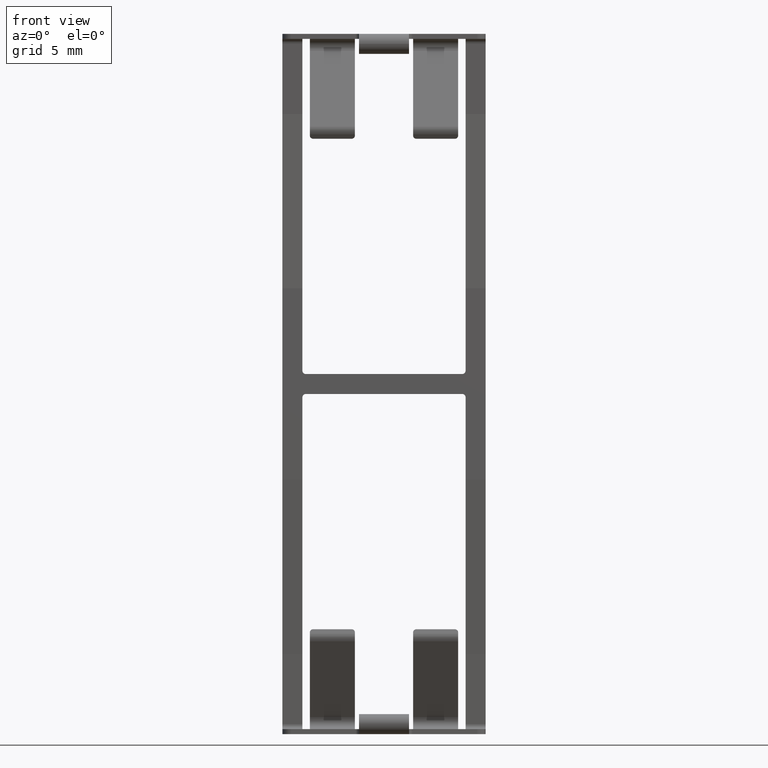
[diagram: clean part render]
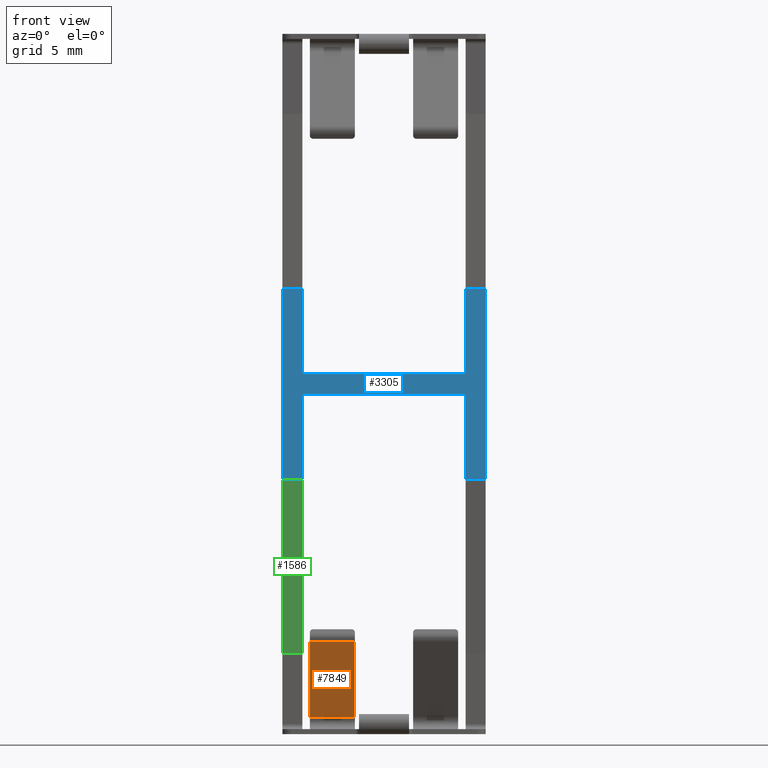
[diagram: same view with three faces highlighted in distinct colors, each labeled with its STEP entity id]
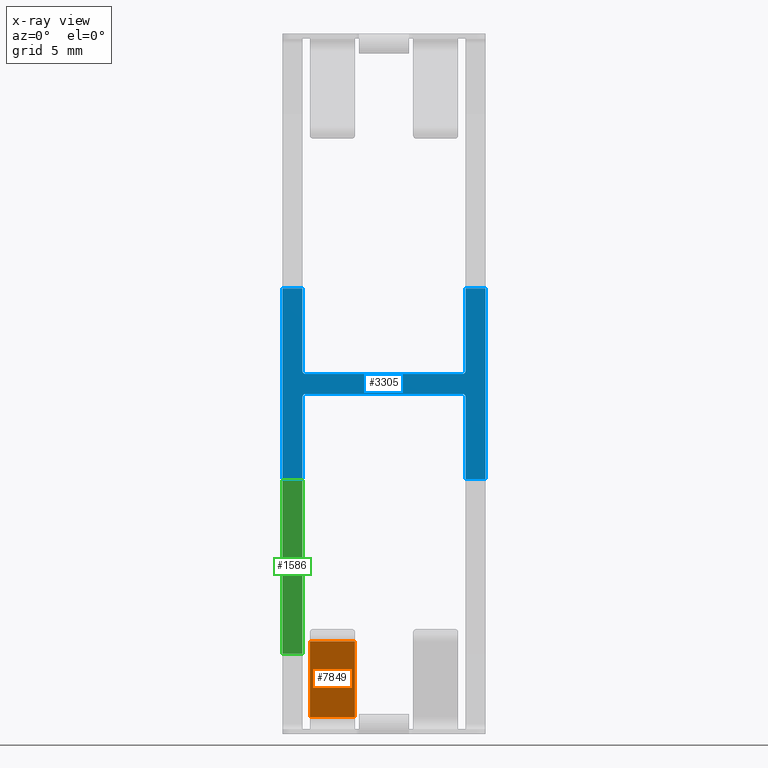
[diagram: x-ray of the same camera — body ghosted, the three highlighted faces saturated]
A machine part, front view with three faces highlighted in distinct colors.
The next image is the same camera in x-ray (body ghosted, the three faces saturated) — at least one of them is partly hidden behind the body in this view.
Their STEP definitions:

[orange] entity #7849 — the highlighted planar face has unit normal (0, -0.885, -0.4655).
#5 = CARTESIAN_POINT ( 'NONE',  ( -4.450000000000001066, 2.792520677337574586, -41.01724379679871646 ) ) ;
#33 = EDGE_CURVE ( 'NONE', #4945, #9798, #7511, .T. ) ;
#107 = VECTOR ( 'NONE', #1181, 999.9999999999998863 ) ;
#167 = ORIENTED_EDGE ( 'NONE', *, *, #11297, .F. ) ;
#281 = ORIENTED_EDGE ( 'NONE', *, *, #2717, .F. ) ;
#659 = DIRECTION ( 'NONE',  ( 1.000000000000000000, 1.015655456140227682E-17, -1.803643067149463097E-17 ) ) ;
#1181 = DIRECTION ( 'NONE',  ( -2.069098918964203170E-17, 0.4655124064025548680, -0.8850413546751940697 ) ) ;
#1259 = ORIENTED_EDGE ( 'NONE', *, *, #5879, .T. ) ;
#1943 = CARTESIAN_POINT ( 'NONE',  ( -4.450000000000001066, 2.792520677337574586, -41.01724379679871646 ) ) ;
#2630 = CARTESIAN_POINT ( 'NONE',  ( -4.450000000000001066, 2.792520677337574586, -41.01724379679871646 ) ) ;
#2687 = DIRECTION ( 'NONE',  ( 5.927885630556773337E-19, -0.8850413546751940697, -0.4655124064025547570 ) ) ;
#2717 = EDGE_CURVE ( 'NONE', #8808, #8483, #5981, .T. ) ;
#2782 = CARTESIAN_POINT ( 'NONE',  ( -1.750000000000000444, 2.792520677337574586, -41.01724379679871646 ) ) ;
#2831 = DIRECTION ( 'NONE',  ( 1.000000000000000000, 1.015655456140227682E-17, -1.803643067149463097E-17 ) ) ;
#3239 = AXIS2_PLACEMENT_3D ( 'NONE', #5, #2687, #10676 ) ;
#4339 = VECTOR ( 'NONE', #5459, 999.9999999999998863 ) ;
#4686 = VECTOR ( 'NONE', #2831, 1000.000000000000000 ) ;
#4945 = VERTEX_POINT ( 'NONE', #10872 ) ;
#5060 = CARTESIAN_POINT ( 'NONE',  ( -4.450000000000001066, 0.4074793226623990572, -36.48275620320126933 ) ) ;
#5209 = EDGE_LOOP ( 'NONE', ( #9705, #1259, #281, #167 ) ) ;
#5459 = DIRECTION ( 'NONE',  ( -2.069098918964203170E-17, 0.4655124064025548680, -0.8850413546751940697 ) ) ;
#5879 = EDGE_CURVE ( 'NONE', #9798, #8483, #7309, .T. ) ;
#5981 = LINE ( 'NONE', #2782, #4339 ) ;
#6799 = LINE ( 'NONE', #5060, #11247 ) ;
#7309 = LINE ( 'NONE', #8951, #4686 ) ;
#7511 = LINE ( 'NONE', #1943, #107 ) ;
#7849 = ADVANCED_FACE ( 'NONE', ( #10690 ), #8787, .T. ) ;
#8086 = CARTESIAN_POINT ( 'NONE',  ( -1.750000000000000444, 2.792520677337574586, -41.01724379679871646 ) ) ;
#8483 = VERTEX_POINT ( 'NONE', #8086 ) ;
#8787 = PLANE ( 'NONE',  #3239 ) ;
#8808 = VERTEX_POINT ( 'NONE', #9373 ) ;
#8951 = CARTESIAN_POINT ( 'NONE',  ( -4.450000000000001066, 2.792520677337574586, -41.01724379679871646 ) ) ;
#9373 = CARTESIAN_POINT ( 'NONE',  ( -1.750000000000001554, 0.4074793226623898423, -36.48275620320126222 ) ) ;
#9705 = ORIENTED_EDGE ( 'NONE', *, *, #33, .T. ) ;
#9798 = VERTEX_POINT ( 'NONE', #2630 ) ;
#10676 = DIRECTION ( 'NONE',  ( -2.069098918964202245E-17, 0.4655124064025547570, -0.8850413546751940697 ) ) ;
#10690 = FACE_OUTER_BOUND ( 'NONE', #5209, .T. ) ;
#10872 = CARTESIAN_POINT ( 'NONE',  ( -4.450000000000002842, 0.4074793226623896203, -36.48275620320126222 ) ) ;
#11247 = VECTOR ( 'NONE', #659, 1000.000000000000000 ) ;
#11297 = EDGE_CURVE ( 'NONE', #4945, #8808, #6799, .T. ) ;

[blue] entity #3305 — the highlighted planar face has unit normal (0, 1, 0).
#27 = VERTEX_POINT ( 'NONE', #8009 ) ;
#91 = LINE ( 'NONE', #1361, #11406 ) ;
#104 = VERTEX_POINT ( 'NONE', #2925 ) ;
#121 = DIRECTION ( 'NONE',  ( 0.0000000000000000000, -2.168404344971021884E-15, 1.000000000000000000 ) ) ;
#189 = DIRECTION ( 'NONE',  ( 1.000000000000000000, 0.0000000000000000000, 0.0000000000000000000 ) ) ;
#325 = DIRECTION ( 'NONE',  ( 0.0000000000000000000, -2.168404344971021884E-15, 1.000000000000000000 ) ) ;
#476 = DIRECTION ( 'NONE',  ( 0.0000000000000000000, -2.168404344971021884E-15, 1.000000000000000000 ) ) ;
#902 = CIRCLE ( 'NONE', #10022, 0.1999999999999987899 ) ;
#913 = DIRECTION ( 'NONE',  ( 1.000000000000000000, 0.0000000000000000000, 0.0000000000000000000 ) ) ;
#1091 = CARTESIAN_POINT ( 'NONE',  ( -4.899999999999999467, 1.950000000000021938, -21.82499999999999574 ) ) ;
#1219 = CARTESIAN_POINT ( 'NONE',  ( -4.700000000000000178, 1.950000000000023270, -21.62500000000000000 ) ) ;
#1255 = AXIS2_PLACEMENT_3D ( 'NONE', #11054, #2177, #325 ) ;
#1361 = CARTESIAN_POINT ( 'NONE',  ( -4.899999999999999467, 1.950000000000013278, -15.30000000000008953 ) ) ;
#1487 = CARTESIAN_POINT ( 'NONE',  ( -4.899999999999999467, 1.950000000000023270, -21.62500000000000000 ) ) ;
#1571 = VECTOR ( 'NONE', #4754, 1000.000000000000000 ) ;
#1627 = VERTEX_POINT ( 'NONE', #4280 ) ;
#1718 = VERTEX_POINT ( 'NONE', #2472 ) ;
#1824 = VERTEX_POINT ( 'NONE', #2811 ) ;
#1828 = ORIENTED_EDGE ( 'NONE', *, *, #10647, .F. ) ;
#1841 = LINE ( 'NONE', #8434, #8856 ) ;
#1966 = EDGE_CURVE ( 'NONE', #4938, #3746, #10091, .T. ) ;
#1968 = CIRCLE ( 'NONE', #10181, 0.1999999999999987899 ) ;
#1980 = VECTOR ( 'NONE', #5227, 1000.000000000000000 ) ;
#1999 = EDGE_CURVE ( 'NONE', #3967, #4938, #9823, .T. ) ;
#2069 = ORIENTED_EDGE ( 'NONE', *, *, #1999, .F. ) ;
#2141 = ORIENTED_EDGE ( 'NONE', *, *, #8372, .T. ) ;
#2177 = DIRECTION ( 'NONE',  ( 0.0000000000000000000, 1.000000000000000000, 1.637578961322105503E-15 ) ) ;
#2472 = CARTESIAN_POINT ( 'NONE',  ( -4.900000000000001243, 1.950000000000033706, -26.74999999999999645 ) ) ;
#2567 = ORIENTED_EDGE ( 'NONE', *, *, #7269, .F. ) ;
#2691 = CARTESIAN_POINT ( 'NONE',  ( -4.700000000000000178, 1.950000000000020828, -20.22500000000000142 ) ) ;
#2811 = CARTESIAN_POINT ( 'NONE',  ( -4.700000000000000178, 1.950000000000022382, -20.42499999999999716 ) ) ;
#2905 = VERTEX_POINT ( 'NONE', #10926 ) ;
#2925 = CARTESIAN_POINT ( 'NONE',  ( -4.900000000000001243, 1.950000000000014166, -15.30000000000009130 ) ) ;
#3094 = CARTESIAN_POINT ( 'NONE',  ( 4.700000000000001066, 1.950000000000023714, -21.82499999999999574 ) ) ;
#3160 = DIRECTION ( 'NONE',  ( 0.0000000000000000000, 1.887379141862765724E-15, -1.000000000000000000 ) ) ;
#3183 = ORIENTED_EDGE ( 'NONE', *, *, #1966, .F. ) ;
#3254 = LINE ( 'NONE', #8830, #3791 ) ;
#3293 = EDGE_CURVE ( 'NONE', #104, #10777, #7768, .T. ) ;
#3305 = ADVANCED_FACE ( 'NONE', ( #5670 ), #10341, .F. ) ;
#3500 = CARTESIAN_POINT ( 'NONE',  ( 6.100000000000001421, 1.950000000000014166, -15.30000000000009130 ) ) ;
#3648 = EDGE_CURVE ( 'NONE', #3967, #3934, #4713, .T. ) ;
#3746 = VERTEX_POINT ( 'NONE', #5493 ) ;
#3791 = VECTOR ( 'NONE', #913, 1000.000000000000000 ) ;
#3856 = EDGE_CURVE ( 'NONE', #27, #4762, #902, .T. ) ;
#3934 = VERTEX_POINT ( 'NONE', #11239 ) ;
#3967 = VERTEX_POINT ( 'NONE', #3500 ) ;
#3968 = DIRECTION ( 'NONE',  ( 0.0000000000000000000, 1.000000000000000000, 1.637578961322105503E-15 ) ) ;
#4137 = EDGE_LOOP ( 'NONE', ( #5241, #8725, #4939, #10332, #2141, #3183, #2069, #10552, #10266, #4508, #2567, #7430, #1828, #9657, #7304, #9302 ) ) ;
#4246 = CARTESIAN_POINT ( 'NONE',  ( 4.700000000000001066, 1.950000000000020828, -20.22500000000000142 ) ) ;
#4280 = CARTESIAN_POINT ( 'NONE',  ( -4.899999999999999467, 1.950000000000022382, -20.22500000000000142 ) ) ;
#4353 = LINE ( 'NONE', #1487, #4737 ) ;
#4406 = VERTEX_POINT ( 'NONE', #1219 ) ;
#4505 = CARTESIAN_POINT ( 'NONE',  ( -6.099999999999999645, 1.950000000000031930, -26.74999999999999645 ) ) ;
#4508 = ORIENTED_EDGE ( 'NONE', *, *, #8360, .T. ) ;
#4692 = DIRECTION ( 'NONE',  ( -1.000000000000000000, -0.0000000000000000000, 0.0000000000000000000 ) ) ;
#4713 = LINE ( 'NONE', #6987, #5543 ) ;
#4737 = VECTOR ( 'NONE', #8391, 1000.000000000000000 ) ;
#4754 = DIRECTION ( 'NONE',  ( 0.0000000000000000000, 1.637578961322105503E-15, -1.000000000000000000 ) ) ;
#4762 = VERTEX_POINT ( 'NONE', #9722 ) ;
#4906 = DIRECTION ( 'NONE',  ( 0.0000000000000000000, 1.000000000000000000, 1.637578961322105503E-15 ) ) ;
#4938 = VERTEX_POINT ( 'NONE', #8348 ) ;
#4939 = ORIENTED_EDGE ( 'NONE', *, *, #9028, .T. ) ;
#5073 = CARTESIAN_POINT ( 'NONE',  ( -6.099999999999999645, 1.950000000000012834, -15.30000000000008953 ) ) ;
#5094 = DIRECTION ( 'NONE',  ( 0.0000000000000000000, -2.168404344971021884E-15, 1.000000000000000000 ) ) ;
#5130 = CARTESIAN_POINT ( 'NONE',  ( 4.899999999999999467, 1.950000000000023270, -21.62500000000000000 ) ) ;
#5227 = DIRECTION ( 'NONE',  ( 0.0000000000000000000, 1.637578961322105503E-15, -1.000000000000000000 ) ) ;
#5241 = ORIENTED_EDGE ( 'NONE', *, *, #6928, .F. ) ;
#5403 = LINE ( 'NONE', #4505, #1980 ) ;
#5493 = CARTESIAN_POINT ( 'NONE',  ( 4.899999999999999467, 1.950000000000031486, -26.74999999999999645 ) ) ;
#5543 = VECTOR ( 'NONE', #11438, 1000.000000000000000 ) ;
#5664 = VECTOR ( 'NONE', #6591, 1000.000000000000000 ) ;
#5670 = FACE_OUTER_BOUND ( 'NONE', #4137, .T. ) ;
#5793 = VECTOR ( 'NONE', #11038, 1000.000000000000000 ) ;
#5924 = VERTEX_POINT ( 'NONE', #7555 ) ;
#5948 = EDGE_CURVE ( 'NONE', #1718, #2905, #7619, .T. ) ;
#6213 = DIRECTION ( 'NONE',  ( 0.0000000000000000000, 1.000000000000000000, 1.637578961322105503E-15 ) ) ;
#6236 = VECTOR ( 'NONE', #9630, 1000.000000000000000 ) ;
#6591 = DIRECTION ( 'NONE',  ( -1.000000000000000000, -0.0000000000000000000, 0.0000000000000000000 ) ) ;
#6752 = EDGE_CURVE ( 'NONE', #1824, #1627, #9493, .T. ) ;
#6928 = EDGE_CURVE ( 'NONE', #11053, #1718, #4353, .T. ) ;
#6987 = CARTESIAN_POINT ( 'NONE',  ( 6.099999999999999645, 1.950000000000013278, -15.30000000000008953 ) ) ;
#7193 = VECTOR ( 'NONE', #4692, 1000.000000000000000 ) ;
#7269 = EDGE_CURVE ( 'NONE', #1824, #8371, #3254, .T. ) ;
#7304 = ORIENTED_EDGE ( 'NONE', *, *, #7879, .T. ) ;
#7376 = CARTESIAN_POINT ( 'NONE',  ( 6.099999999999999645, 1.950000000000031930, -26.74999999999999645 ) ) ;
#7430 = ORIENTED_EDGE ( 'NONE', *, *, #6752, .T. ) ;
#7474 = DIRECTION ( 'NONE',  ( 0.0000000000000000000, -1.637578961322105503E-15, 1.000000000000000000 ) ) ;
#7480 = DIRECTION ( 'NONE',  ( 0.0000000000000000000, 1.887379141862765724E-15, -1.000000000000000000 ) ) ;
#7555 = CARTESIAN_POINT ( 'NONE',  ( 4.899999999999999467, 1.950000000000022382, -20.22500000000000142 ) ) ;
#7619 = LINE ( 'NONE', #9253, #5664 ) ;
#7768 = LINE ( 'NONE', #10012, #7193 ) ;
#7879 = EDGE_CURVE ( 'NONE', #10777, #2905, #5403, .T. ) ;
#8009 = CARTESIAN_POINT ( 'NONE',  ( 4.700000000000001066, 1.950000000000023270, -21.62500000000000000 ) ) ;
#8031 = CARTESIAN_POINT ( 'NONE',  ( -4.899999999999999467, 1.950000000000023270, -21.62500000000000000 ) ) ;
#8146 = EDGE_CURVE ( 'NONE', #11053, #4406, #8869, .T. ) ;
#8314 = CARTESIAN_POINT ( 'NONE',  ( 6.099999999999999645, 1.950000000000031486, -26.74999999999999645 ) ) ;
#8348 = CARTESIAN_POINT ( 'NONE',  ( 6.100000000000001421, 1.950000000000033706, -26.74999999999999645 ) ) ;
#8360 = EDGE_CURVE ( 'NONE', #5924, #8371, #1968, .T. ) ;
#8371 = VERTEX_POINT ( 'NONE', #10457 ) ;
#8372 = EDGE_CURVE ( 'NONE', #4762, #3746, #9575, .T. ) ;
#8383 = CARTESIAN_POINT ( 'NONE',  ( 6.099999999999999645, 1.950000000000031930, -26.74999999999999645 ) ) ;
#8391 = DIRECTION ( 'NONE',  ( 0.0000000000000000000, 1.498801083243960935E-15, -1.000000000000000000 ) ) ;
#8434 = CARTESIAN_POINT ( 'NONE',  ( 4.899999999999999467, 1.950000000000013278, -15.30000000000008953 ) ) ;
#8722 = LINE ( 'NONE', #8031, #10796 ) ;
#8725 = ORIENTED_EDGE ( 'NONE', *, *, #8146, .T. ) ;
#8830 = CARTESIAN_POINT ( 'NONE',  ( -4.899999999999999467, 1.950000000000022382, -20.42499999999999716 ) ) ;
#8856 = VECTOR ( 'NONE', #3160, 1000.000000000000000 ) ;
#8869 = CIRCLE ( 'NONE', #1255, 0.1999999999999987899 ) ;
#9028 = EDGE_CURVE ( 'NONE', #4406, #27, #8722, .T. ) ;
#9253 = CARTESIAN_POINT ( 'NONE',  ( 6.099999999999999645, 1.950000000000031486, -26.74999999999999645 ) ) ;
#9302 = ORIENTED_EDGE ( 'NONE', *, *, #5948, .F. ) ;
#9493 = CIRCLE ( 'NONE', #11283, 0.1999999999999987899 ) ;
#9575 = LINE ( 'NONE', #5130, #6236 ) ;
#9630 = DIRECTION ( 'NONE',  ( 0.0000000000000000000, 1.498801083243960935E-15, -1.000000000000000000 ) ) ;
#9657 = ORIENTED_EDGE ( 'NONE', *, *, #3293, .T. ) ;
#9722 = CARTESIAN_POINT ( 'NONE',  ( 4.899999999999999467, 1.950000000000024603, -21.82499999999999574 ) ) ;
#9823 = LINE ( 'NONE', #7376, #1571 ) ;
#9874 = AXIS2_PLACEMENT_3D ( 'NONE', #8383, #4906, #7474 ) ;
#10012 = CARTESIAN_POINT ( 'NONE',  ( 6.099999999999999645, 1.950000000000013278, -15.30000000000008953 ) ) ;
#10022 = AXIS2_PLACEMENT_3D ( 'NONE', #3094, #3968, #476 ) ;
#10091 = LINE ( 'NONE', #8314, #5793 ) ;
#10181 = AXIS2_PLACEMENT_3D ( 'NONE', #4246, #10562, #5094 ) ;
#10231 = EDGE_CURVE ( 'NONE', #3934, #5924, #1841, .T. ) ;
#10266 = ORIENTED_EDGE ( 'NONE', *, *, #10231, .T. ) ;
#10332 = ORIENTED_EDGE ( 'NONE', *, *, #3856, .T. ) ;
#10341 = PLANE ( 'NONE',  #9874 ) ;
#10457 = CARTESIAN_POINT ( 'NONE',  ( 4.700000000000001066, 1.950000000000022382, -20.42499999999999716 ) ) ;
#10552 = ORIENTED_EDGE ( 'NONE', *, *, #3648, .T. ) ;
#10562 = DIRECTION ( 'NONE',  ( 0.0000000000000000000, 1.000000000000000000, 1.637578961322105503E-15 ) ) ;
#10647 = EDGE_CURVE ( 'NONE', #104, #1627, #91, .T. ) ;
#10777 = VERTEX_POINT ( 'NONE', #5073 ) ;
#10796 = VECTOR ( 'NONE', #189, 1000.000000000000000 ) ;
#10926 = CARTESIAN_POINT ( 'NONE',  ( -6.099999999999999645, 1.950000000000031486, -26.74999999999999645 ) ) ;
#11038 = DIRECTION ( 'NONE',  ( -1.000000000000000000, -0.0000000000000000000, 0.0000000000000000000 ) ) ;
#11053 = VERTEX_POINT ( 'NONE', #1091 ) ;
#11054 = CARTESIAN_POINT ( 'NONE',  ( -4.700000000000000178, 1.950000000000023714, -21.82499999999999574 ) ) ;
#11239 = CARTESIAN_POINT ( 'NONE',  ( 4.899999999999999467, 1.950000000000012834, -15.30000000000008953 ) ) ;
#11283 = AXIS2_PLACEMENT_3D ( 'NONE', #2691, #6213, #121 ) ;
#11406 = VECTOR ( 'NONE', #7480, 1000.000000000000000 ) ;
#11438 = DIRECTION ( 'NONE',  ( -1.000000000000000000, -0.0000000000000000000, 0.0000000000000000000 ) ) ;

[green] entity #1586 — the highlighted planar face has unit normal (-0, 0.9984, 0.0573).
#863 = CARTESIAN_POINT ( 'NONE',  ( -4.900000000000001243, 2.549179873581582711, -37.22137389633400772 ) ) ;
#1238 = EDGE_LOOP ( 'NONE', ( #3568, #8219, #4561, #10102 ) ) ;
#1453 = VECTOR ( 'NONE', #11348, 1000.000000000000000 ) ;
#1586 = ADVANCED_FACE ( 'NONE', ( #8461 ), #11325, .F. ) ;
#1734 = LINE ( 'NONE', #11430, #8741 ) ;
#2103 = CARTESIAN_POINT ( 'NONE',  ( -4.900000000000000355, 1.951312202269511298, -26.79580176586557982 ) ) ;
#2612 = VERTEX_POINT ( 'NONE', #7880 ) ;
#2667 = LINE ( 'NONE', #4307, #1453 ) ;
#3219 = EDGE_CURVE ( 'NONE', #5272, #10875, #8051, .T. ) ;
#3568 = ORIENTED_EDGE ( 'NONE', *, *, #3219, .F. ) ;
#3661 = CARTESIAN_POINT ( 'NONE',  ( -6.100000000000000533, 2.549179873581578271, -37.22137389633400062 ) ) ;
#4307 = CARTESIAN_POINT ( 'NONE',  ( 6.099999999999998757, 2.549179873581578271, -37.22137389633400062 ) ) ;
#4561 = ORIENTED_EDGE ( 'NONE', *, *, #7453, .T. ) ;
#5260 = EDGE_CURVE ( 'NONE', #10875, #2612, #2667, .T. ) ;
#5272 = VERTEX_POINT ( 'NONE', #10516 ) ;
#5445 = DIRECTION ( 'NONE',  ( -2.069098918964203786E-17, 0.05725220733198285034, -0.9983597471631233677 ) ) ;
#5667 = CARTESIAN_POINT ( 'NONE',  ( -6.100000000000000533, 1.951312202269512852, -26.79580176586557982 ) ) ;
#6128 = DIRECTION ( 'NONE',  ( -1.000000000000000000, -1.776421042922661982E-18, 2.062311228220985468E-17 ) ) ;
#7453 = EDGE_CURVE ( 'NONE', #10113, #2612, #8049, .T. ) ;
#7684 = CARTESIAN_POINT ( 'NONE',  ( 6.099999999999998757, 2.549179873581578271, -37.22137389633400062 ) ) ;
#7880 = CARTESIAN_POINT ( 'NONE',  ( -6.100000000000000533, 2.549179873581580935, -37.22137389633400772 ) ) ;
#8049 = LINE ( 'NONE', #3661, #10973 ) ;
#8051 = LINE ( 'NONE', #2103, #9844 ) ;
#8219 = ORIENTED_EDGE ( 'NONE', *, *, #9778, .T. ) ;
#8461 = FACE_OUTER_BOUND ( 'NONE', #1238, .T. ) ;
#8741 = VECTOR ( 'NONE', #6128, 1000.000000000000000 ) ;
#9778 = EDGE_CURVE ( 'NONE', #5272, #10113, #1734, .T. ) ;
#9844 = VECTOR ( 'NONE', #10043, 1000.000000000000114 ) ;
#10043 = DIRECTION ( 'NONE',  ( -2.069098918964203786E-17, 0.05725220733198285034, -0.9983597471631233677 ) ) ;
#10102 = ORIENTED_EDGE ( 'NONE', *, *, #5260, .F. ) ;
#10113 = VERTEX_POINT ( 'NONE', #5667 ) ;
#10162 = AXIS2_PLACEMENT_3D ( 'NONE', #7684, #10635, #10280 ) ;
#10280 = DIRECTION ( 'NONE',  ( 2.069098918964203786E-17, -0.05725220733198285727, 0.9983597471631233677 ) ) ;
#10516 = CARTESIAN_POINT ( 'NONE',  ( -4.900000000000001243, 1.951312202269535279, -26.79580176586557982 ) ) ;
#10635 = DIRECTION ( 'NONE',  ( -5.927885630556797411E-19, 0.9983597471631234788, 0.05725220733198286421 ) ) ;
#10875 = VERTEX_POINT ( 'NONE', #863 ) ;
#10973 = VECTOR ( 'NONE', #5445, 1000.000000000000114 ) ;
#11325 = PLANE ( 'NONE',  #10162 ) ;
#11348 = DIRECTION ( 'NONE',  ( -1.000000000000000000, -1.776421042922661982E-18, 2.062311228220985468E-17 ) ) ;
#11430 = CARTESIAN_POINT ( 'NONE',  ( 6.099999999999998757, 1.951312202269511298, -26.79580176586557982 ) ) ;